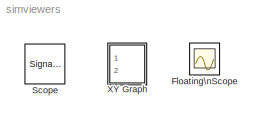
MODEL simviewers
KIND library
BLOCK [Scope] Floating\nScope
  DataFormat = StructureWithTime
  Floating = on
  IOType = viewer
  NumInputPorts = 1
  Ports = []
BLOCK [SignalViewerScope] Scope
  DataFormat = Array
  Disabled = off
  IOType = viewer
  MaxDataPoints = 7500
  NumInputPorts = 1
  Ports = []
  RefreshTime = 0.035000
  ShowDataMarkers = off
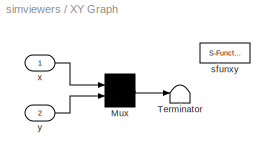
BLOCK [SubSystem] XY Graph
  CopyFcn = sfunxy([],[],[],'CopyBlock')
  DeleteFcn = sfunxy([],[],[],'DeleteBlock')
  IOType = viewer
  LoadFcn = sfunxy([],[],[],'LoadBlock')
  MaskCallbackString = ||||
  MaskDescription = XY scope using MATLAB graph window.  First input is used as time base.  Enter plotting ranges.
  MaskDisplay = plot([.05 .95 .95 .05 .05],[.45 .45 .95 .95 .45], 0.5+cos(0:0.1:2*pi)*0.3,0.7+sin(0:0.1:2*pi)*0.2)
  MaskEnableString = on,on,on,on,on
  MaskHelp = This block can be used to explore limit cycles. Look at the m-file sfunxy.m to see how it works.
  MaskIconFrame = on
  MaskIconOpaque = on
  MaskIconRotate = none
  MaskIconUnits = normalized
  MaskPromptString = x-min:|x-max:|y-min:|y-max:|Sample time:
  MaskSelfModifiable = on
  MaskStyleString = edit,edit,edit,edit,edit
  MaskTabNameString = ,,,,
  MaskToolTipString = on,on,on,on,on
  MaskTunableValueString = on,on,on,on,on
  MaskType = XY scope.
  MaskValueString = -1|1|-1|1|-1
  MaskVarAliasString = ,,,,
  MaskVariables = xmin=@1;xmax=@2;ymin=@3;ymax=@4;st=@5;
  MaskVisibilityString = on,on,on,on,on
  MinAlgLoopOccurrences = off
  NameChangeFcn = sfunxy([],[],[],'NameChange')
  Ports = [2]
  PropExecContextAcrossSSBoundary = on
  RTWSystemCode = Auto
  SimViewingDevice = on
  StartFcn = sfunxy([],[],[],'Start')
  StopFcn = sfunxy([],[],[],'Stop')
  TreatAsAtomicUnit = on
BLOCK [Mux] XY Graph/Mux
  Inputs = 2
  Ports = [2, 1]
BLOCK [Terminator] XY Graph/Terminator
BLOCK [S-Function] XY Graph/sfunxy
  FunctionName = sfunxy
  IOType = viewer
  Parameters = [xmin xmax ymin ymax], st
  Ports = [1, 1]
BLOCK [Inport] XY Graph/x
  IconDisplay = Port number
  LatchInput = off
BLOCK [Inport] XY Graph/y
  IconDisplay = Port number
  LatchInput = off
  Port = 2
LINE XY Graph/Mux:1 -> XY Graph/Terminator:1
LINE XY Graph/x:1 -> XY Graph/Mux:1
LINE XY Graph/y:1 -> XY Graph/Mux:2
